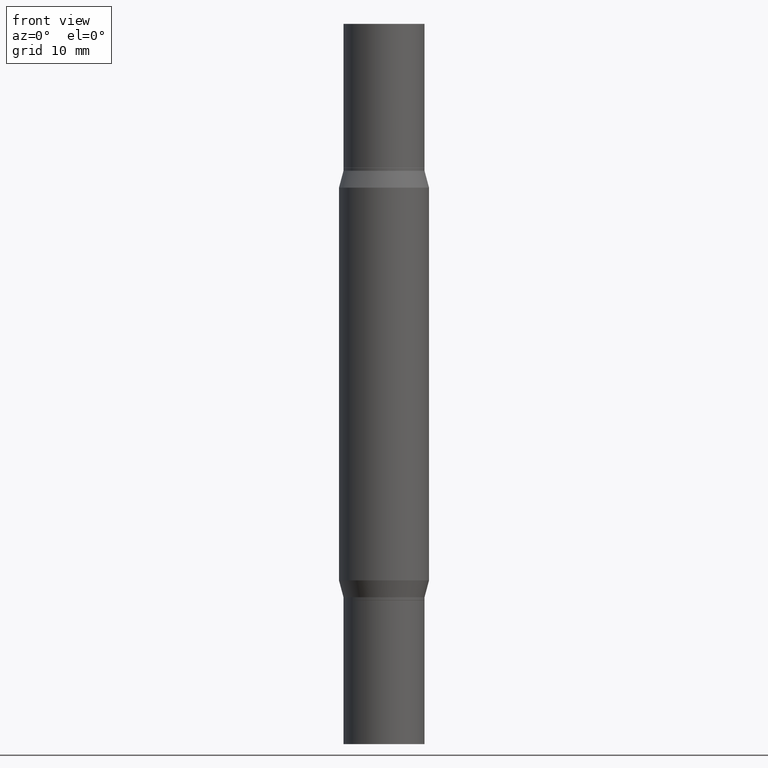
[diagram: clean part render]
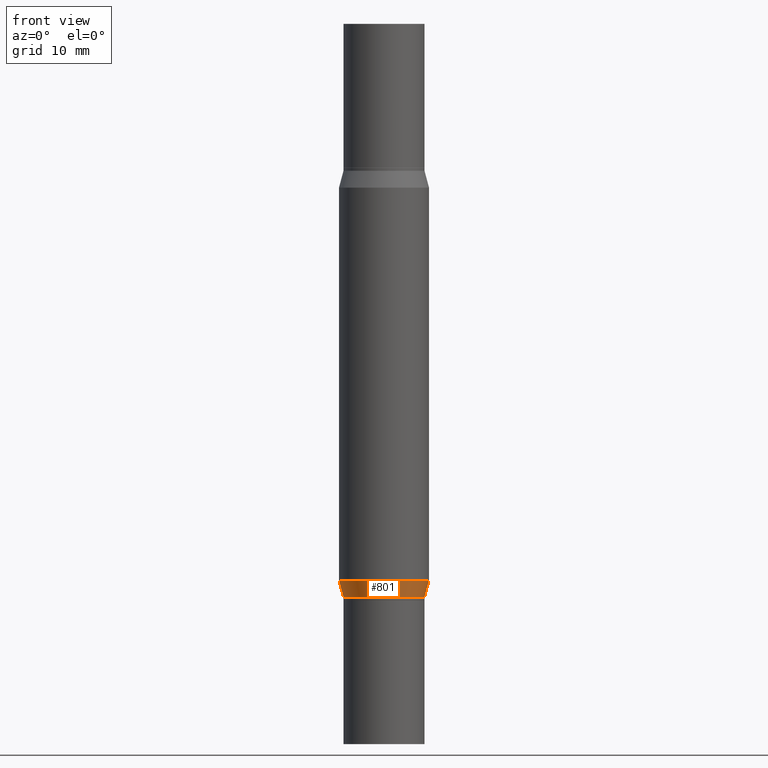
[diagram: same view with one face highlighted and labeled with its STEP entity id]
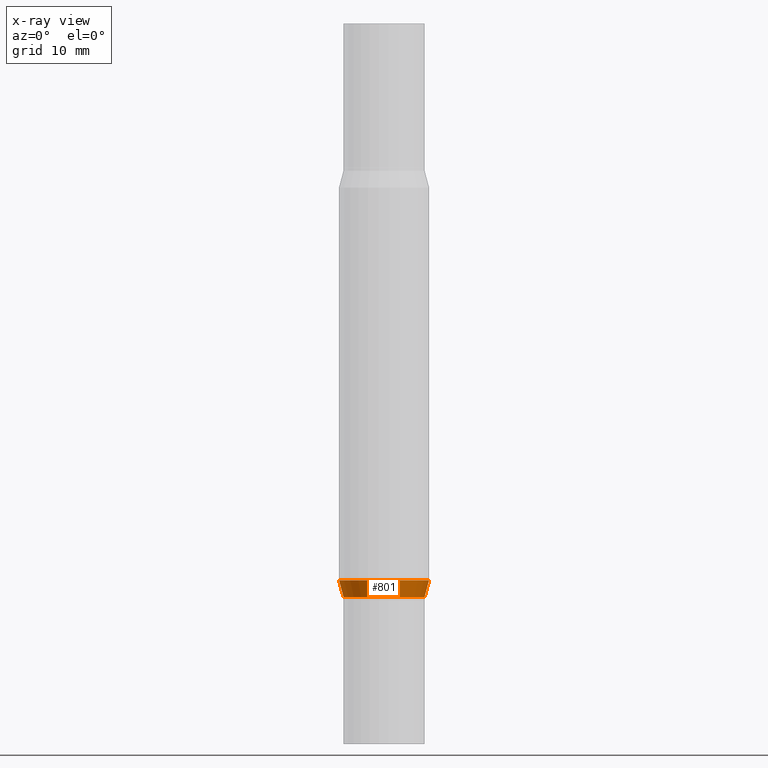
[diagram: x-ray of the same camera — body ghosted, the highlighted face saturated]
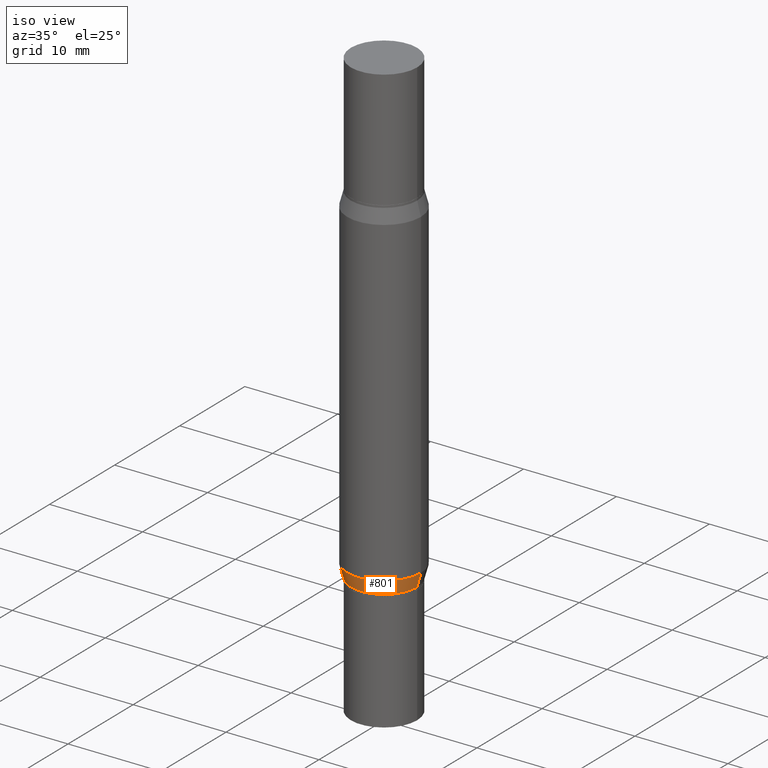
[diagram: same view with one face highlighted and labeled with its STEP entity id]
A machine part, front view. The second image highlights one B-rep face of the part: STEP entity #801.
The next image is the same camera in x-ray: the body ghosted, the highlighted face saturated — about 0% of this face is hidden behind the body in this view.
A second angle (iso view) of the same face is appended — the face is thin or edge-on in the first view.
In plain terms, the highlighted conical surface has half-angle 15 deg.
Its self-contained STEP definition (entity closure, byte-faithful):
#80 = EDGE_LOOP ( 'NONE', ( #675, #485, #934, #150 ) ) ;
#101 = EDGE_CURVE ( 'NONE', #111, #259, #533, .T. ) ;
#111 = VERTEX_POINT ( 'NONE', #202 ) ;
#112 = CARTESIAN_POINT ( 'NONE',  ( 4.866482924308422209E-29, -6.948047864297860305E-15, -1.989999999999999991 ) ) ;
#122 = DIRECTION ( 'NONE',  ( 1.000000000000000000, -6.982962677686263555E-15, 0.000000000000000000 ) ) ;
#123 = CARTESIAN_POINT ( 'NONE',  ( 4.723651417821850369E-29, -6.744122327306583531E-15, -1.931593404861546848 ) ) ;
#135 = CARTESIAN_POINT ( 'NONE',  ( 4.866482924308422209E-29, -6.948047864297860305E-15, -1.989999999999999991 ) ) ;
#150 = ORIENTED_EDGE ( 'NONE', *, *, #248, .F. ) ;
#162 = CARTESIAN_POINT ( 'NONE',  ( 0.1562500000000000000, -7.835210245695063494E-15, -1.931593404861546848 ) ) ;
#164 = VERTEX_POINT ( 'NONE', #859 ) ;
#195 = DIRECTION ( 'NONE',  ( 1.000000000000000000, -6.982962677686269077E-15, 0.000000000000000000 ) ) ;
#202 = CARTESIAN_POINT ( 'NONE',  ( -0.1405999999999998917, -5.965609314178665286E-15, -1.989999999999999991 ) ) ;
#233 = CARTESIAN_POINT ( 'NONE',  ( 0.1405999999999998917, -7.929852416780548622E-15, -1.989999999999999991 ) ) ;
#244 = CONICAL_SURFACE ( 'NONE', #924, 0.1405999999999998917, 0.2617993877991502960 ) ;
#248 = EDGE_CURVE ( 'NONE', #164, #253, #455, .T. ) ;
#253 = VERTEX_POINT ( 'NONE', #162 ) ;
#259 = VERTEX_POINT ( 'NONE', #233 ) ;
#350 = CARTESIAN_POINT ( 'NONE',  ( -0.1405999999999998917, -5.949024777819160607E-15, -1.989999999999999991 ) ) ;
#374 = LINE ( 'NONE', #511, #817 ) ;
#426 = VECTOR ( 'NONE', #663, 39.37007874015748143 ) ;
#452 = LINE ( 'NONE', #350, #426 ) ;
#455 = CIRCLE ( 'NONE', #667, 0.1562500000000000000 ) ;
#480 = AXIS2_PLACEMENT_3D ( 'NONE', #135, #592, #740 ) ;
#485 = ORIENTED_EDGE ( 'NONE', *, *, #101, .T. ) ;
#511 = CARTESIAN_POINT ( 'NONE',  ( 0.1405999999999998917, -7.929852416780548622E-15, -1.989999999999999991 ) ) ;
#533 = CIRCLE ( 'NONE', #480, 0.1405999999999998917 ) ;
#579 = DIRECTION ( 'NONE',  ( -2.445468806185136597E-29, 3.491481338843145583E-15, 1.000000000000000000 ) ) ;
#592 = DIRECTION ( 'NONE',  ( -2.445468806185136597E-29, 3.491481338843145583E-15, 1.000000000000000000 ) ) ;
#606 = EDGE_CURVE ( 'NONE', #259, #253, #374, .T. ) ;
#663 = DIRECTION ( 'NONE',  ( -0.2588190451025215721, 5.211531920934551831E-15, 0.9659258262890679791 ) ) ;
#667 = AXIS2_PLACEMENT_3D ( 'NONE', #123, #579, #195 ) ;
#674 = DIRECTION ( 'NONE',  ( 0.2588190451025215721, 1.565188264969619995E-15, 0.9659258262890679791 ) ) ;
#675 = ORIENTED_EDGE ( 'NONE', *, *, #929, .F. ) ;
#728 = FACE_OUTER_BOUND ( 'NONE', #80, .T. ) ;
#740 = DIRECTION ( 'NONE',  ( 1.000000000000000000, -6.982962677686263555E-15, 0.000000000000000000 ) ) ;
#801 = ADVANCED_FACE ( 'NONE', ( #728 ), #244, .T. ) ;
#817 = VECTOR ( 'NONE', #674, 39.37007874015748143 ) ;
#859 = CARTESIAN_POINT ( 'NONE',  ( -0.1562500000000000000, -3.292398861402129087E-15, -1.931593404861546848 ) ) ;
#924 = AXIS2_PLACEMENT_3D ( 'NONE', #112, #946, #122 ) ;
#929 = EDGE_CURVE ( 'NONE', #111, #164, #452, .T. ) ;
#934 = ORIENTED_EDGE ( 'NONE', *, *, #606, .T. ) ;
#946 = DIRECTION ( 'NONE',  ( -2.445468806185136597E-29, 3.491481338843145583E-15, 1.000000000000000000 ) ) ;